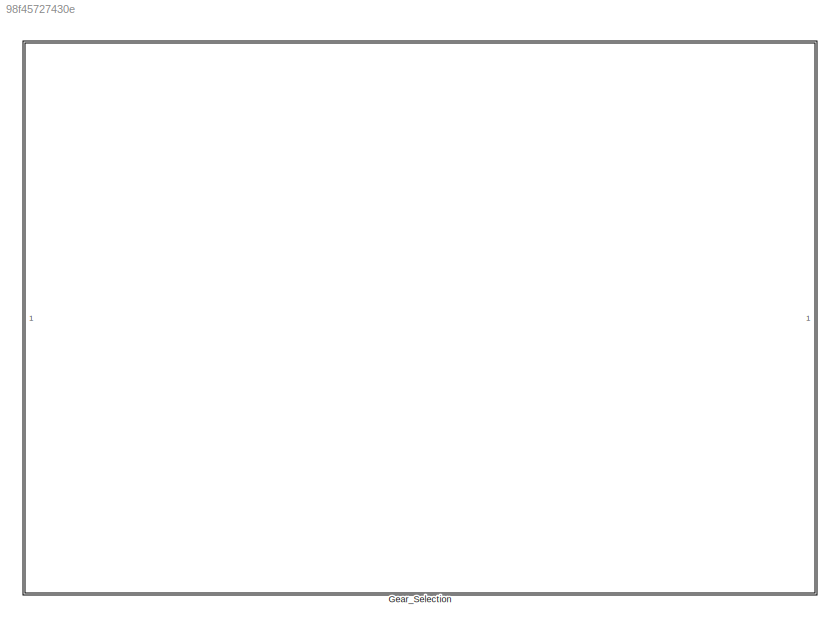
MODEL slx_98f45727430e
KIND library
CONFIG AbsTol = auto
CONFIG EnableMultiTasking = off
CONFIG FixedStep = auto
CONFIG MaxStep = auto
CONFIG MinStep = auto
CONFIG RelTol = 1e-3
CONFIG SampleTimeConstraint = Unconstrained
CONFIG SolverName = VariableStepAuto
CONFIG StartTime = 0.0
CONFIG StopTime = 10.0
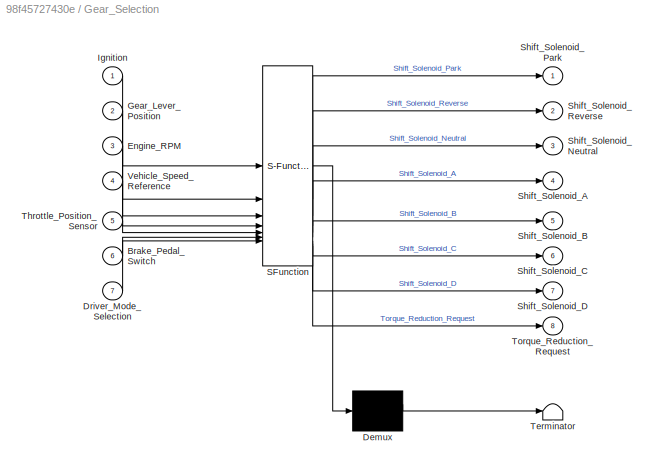
BLOCK [SubSystem] Gear_Selection
  ErrorFcn = Stateflow.Translate.translate
  PermitHierarchicalResolution = ExplicitOnly
  RTWFcnNameOpts = Use subsystem name
  RTWFileNameOpts = Use subsystem name
  RTWSystemCode = Reusable function
  SFBlockType = Chart
  TreatAsAtomicUnit = on
BLOCK [Demux] Gear_Selection/ Demux 
  Outputs = 1
BLOCK [S-Function] Gear_Selection/ SFunction 
  EnableBusSupport = off
  FunctionName = sf_sfun
  PortCounts = [7 9]
  SFcnIsStateOwnerBlock = off
  SFunctionDeploymentMode = off
  Tag = Stateflow S-Function 1
BLOCK [Terminator] Gear_Selection/ Terminator 
BLOCK [Inport] Gear_Selection/Brake_Pedal_Switch
  Port = 6
BLOCK [Inport] Gear_Selection/Driver_Mode_Selection
  Port = 7
BLOCK [Inport] Gear_Selection/Engine_RPM
  Port = 3
BLOCK [Inport] Gear_Selection/Gear_Lever_Position
  Port = 2
BLOCK [Inport] Gear_Selection/Ignition
BLOCK [Outport] Gear_Selection/Shift_Solenoid_A
  Port = 4
BLOCK [Outport] Gear_Selection/Shift_Solenoid_B
  Port = 5
BLOCK [Outport] Gear_Selection/Shift_Solenoid_C
  Port = 6
BLOCK [Outport] Gear_Selection/Shift_Solenoid_D
  Port = 7
BLOCK [Outport] Gear_Selection/Shift_Solenoid_Neutral
  Port = 3
BLOCK [Outport] Gear_Selection/Shift_Solenoid_Park
BLOCK [Outport] Gear_Selection/Shift_Solenoid_Reverse
  Port = 2
BLOCK [Inport] Gear_Selection/Throttle_Position_Sensor
  Port = 5
BLOCK [Outport] Gear_Selection/Torque_Reduction_Request
  Port = 8
BLOCK [Inport] Gear_Selection/Vehicle_Speed_Reference
  Port = 4
CHART Gear_Selection states=18 transitions=29
  STATE_LABEL 'Off'
  STATE_LABEL 'Selection'
  STATE_LABEL 'parking\nentry:\nD=0;\nduring:\nShift_Solenoid_Park=true;\nShift_Solenoid_Reverse=false;\nShift_Solenoid_Neutral=false;\nShift_Solenoid_A = false;\nShift_Solenoid_B = false;\nShift_Solenoid_C = false;\nShift_Solenoid_D = false;'
  STATE_LABEL 'reverse\nentry:\nD=0;\nduring:\nShift_Solenoid_Park=false;\nShift_Solenoid_Reverse=true;\nShift_Solenoid_Neutral=false;\nShift_Solenoid_A = false;\nShift_Solenoid_B = false;\nShift_Solenoid_C = false;\nShift_Solenoid_D = false;'
  STATE_LABEL 'neutral\nentry:\nD=0;\nduring:\nShift_Solenoid_Park=false;\nShift_Solenoid_Reverse=false;\nShift_Solenoid_Neutral=true;\nShift_Solenoid_A = false;\nShift_Solenoid_B = false;\nShift_Solenoid_C = false;\nShift_Solenoid_D = false;'
  STATE_LABEL 'drive\nduring:\nShift_Solenoid_Park=false;\nShift_Solenoid_Reverse=false;\nShift_Solenoid_Neutral=false;\nD=1;\n'
  STATE_LABEL 'primera\nduring:\nShift_Solenoid_Park=false;\nShift_Solenoid_Reverse=false;\nShift_Solenoid_Neutral=false;\nD=1;\n'
  STATE_LABEL 'segunda\nduring:\nShift_Solenoid_Park=false;\nShift_Solenoid_Reverse=false;\nShift_Solenoid_Neutral=false;\nD=1;\n'
  STATE_LABEL 'tercera\nduring:\nShift_Solenoid_Park=false;\nShift_Solenoid_Reverse=false;\nShift_Solenoid_Neutral=false;\nD=1;\n'
  STATE_LABEL '[Gear_Lever_Position==4]'
  STATE_LABEL '[Gear_Lever_Position==7]'
  STATE_LABEL '[Gear_Lever_Position==3]'
  STATE_LABEL '[Gear_Lever_Position==6]'
  STATE_LABEL '[Gear_Lever_Position >=2 && Brake_Pedal_Switch == 1]'
  STATE_LABEL '[Gear_Lever_Position==5]'
  STATE_LABEL '[Gear_Lever_Position==5]'
  STATE_LABEL '[Gear_Lever_Position==6]'
  STATE_LABEL '[Gear_Lever_Position==4]'
  STATE_LABEL '[Gear_Lever_Position==2]'
  STATE_LABEL '[Gear_Lever_Position==1 && Brake_Pedal_Switch == 1]'
  STATE_LABEL '[Gear_Lever_Position==3]'
  STATE_LABEL 'parking\nentry:\nD=0;\nduring:\nShift_Solenoid_Park=true;\nShift_Solenoid_Reverse=false;\nShift_Solenoid_Neutral=false;\nShift_Solenoid_A = false;\nShift_Solenoid_B = false;\nShift_Solenoid_C = false;\nShift_Solenoid_D = false;'
  STATE_LABEL 'reverse\nentry:\nD=0;\nduring:\nShift_Solenoid_Park=false;\nShift_Solenoid_Reverse=true;\nShift_Solenoid_Neutral=false;\nShift_Solenoid_A = false;\nShift_Solenoid_B = false;\nShift_Solenoid_C = false;\nShift_Solenoid_D = false;'
  STATE_LABEL 'neutral\nentry:\nD=0;\nduring:\nShift_Solenoid_Park=false;\nShift_Solenoid_Reverse=false;\nShift_Solenoid_Neutral=true;\nShift_Solenoid_A = false;\nShift_Solenoid_B = false;\nShift_Solenoid_C = false;\nShift_Solenoid_D = false;'
  STATE_LABEL 'drive\nduring:\nShift_Solenoid_Park=false;\nShift_Solenoid_Reverse=false;\nShift_Solenoid_Neutral=false;\nD=1;\n'
  STATE_LABEL 'primera\nduring:\nShift_Solenoid_Park=false;\nShift_Solenoid_Reverse=false;\nShift_Solenoid_Neutral=false;\nD=1;\n'
  STATE_LABEL 'segunda\nduring:\nShift_Solenoid_Park=false;\nShift_Solenoid_Reverse=false;\nShift_Solenoid_Neutral=false;\nD=1;\n'
  STATE_LABEL 'tercera\nduring:\nShift_Solenoid_Park=false;\nShift_Solenoid_Reverse=false;\nShift_Solenoid_Neutral=false;\nD=1;\n'
  STATE_LABEL 'Gear_Selection\nduring:\n  DriveStyle    = UpdateDriveStyle(Engine_RPM, Vehicle_Speed_Reference, Throttle_Position_Sensor);\n  [UpshiftReq, DownshiftReq] = GearShiftScheduler(Engine_RPM, Vehicle_Speed_Reference, Throttle_Position_Sensor, Current_Gear_State, Driver_Mode_Selection, DriveStyle)'
  STATE_LABEL 'DriveStyle = UpdateDriveStyle(Engine_RPM, VehSpeed_kph, Throttle_pct)'
  STATE_LABEL 'SCRIPT:\nfunction DriveStyle = UpdateDriveStyle(Engine_RPM, VehSpeed_kph, Throttle_pct)\n% UpdateDriveStyle\n% Aprende un "estilo de manejo" adaptativo en rango [-1..+1]\n%  -1  → manejo relajado\n%  +1  → manejo agresivo\n%\n% Entradas:\n%   Engine_RPM    : RPM motor\n%   VehSpeed_kph  : Velocidad vehículo [km/h]\n%   Throttle_pct  : Posición de acelerador [0..100]\n%\n% Salida:\n%   DriveStyle    : Estilo de...<+2637ch>'
  STATE_LABEL '[UpshiftReq, DownshiftReq] = GearShiftScheduler( ...\n            Engine_RPM, VehSpeed_kph, Throttle_pct, ...\n            Actual_Gear, DriveMode, DriveStyle)'
  STATE_LABEL 'SCRIPT:\nfunction [UpshiftReq, DownshiftReq] = GearShiftScheduler( ...\n            Engine_RPM, VehSpeed_kph, Throttle_pct, ...\n            Actual_Gear, DriveMode, DriveStyle)\n% GearShiftScheduler\n%   Devuelve flags booleanos de solicitud de cambio:\n%   - UpshiftReq: true → solicitar subir 1 marcha\n%   - DownshiftReq: true → solicitar bajar 1 marcha\n%\n%   Entradas:\n%   - Engine_RPM      : rpm motor\n...<+3608ch>'
  STATE_LABEL 'First\nentry:\nCurrent_Gear_State = 1;\nduring:\nShift_Solenoid_A = true;\nShift_Solenoid_B = false;\nShift_Solenoid_C = false;\nShift_Solenoid_D = false;\nafter (5, sec)\nTorque_Reduction_Request = 0;\n'
  STATE_LABEL 'Second\nentry:\nCurrent_Gear_State = 2;\nduring:\nShift_Solenoid_A = true;\nShift_Solenoid_B = true;\nShift_Solenoid_C = false;\nShift_Solenoid_D = false;\nafter (5, sec)\nTorque_Reduction_Request = 0;\n'
  STATE_LABEL 'Third\nentry:\nCurrent_Gear_State = 3;\nduring:\nShift_Solenoid_A = true;\nShift_Solenoid_B = true;\nShift_Solenoid_C = true;\nShift_Solenoid_D = false;\nafter (5, sec)\nTorque_Reduction_Request = 0;\n'
  STATE_LABEL 'Fourth\nentry:\nCurrent_Gear_State = 4;\nduring:\nShift_Solenoid_A = false;\nShift_Solenoid_B = true;\nShift_Solenoid_C = true;\nShift_Solenoid_D = false;\nafter (1, sec)\nTorque_Reduction_Request = 0;\n'
  STATE_LABEL 'Fifth\nentry:\nCurrent_Gear_State = 5;\nduring:\nShift_Solenoid_A = false;\nShift_Solenoid_B = false;\nShift_Solenoid_C = true;\nShift_Solenoid_D = true;\nafter (1, sec)\nTorque_Reduction_Request = 0;\n'
  STATE_LABEL 'Sixth\nentry:\nCurrent_Gear_State = 6;\nduring:\nShift_Solenoid_A = false;\nShift_Solenoid_B = false;\nShift_Solenoid_C = false;\nShift_Solenoid_D = true;\nafter (1, sec)\nTorque_Reduction_Request = 0;\n'
  STATE_LABEL '[UpshiftReq == true && Current_Gear_State == 1 && Gear_Lever_Position ~= 5]{Torque_Reduction_Request = 1;}'
CHART  states=0 transitions=0
